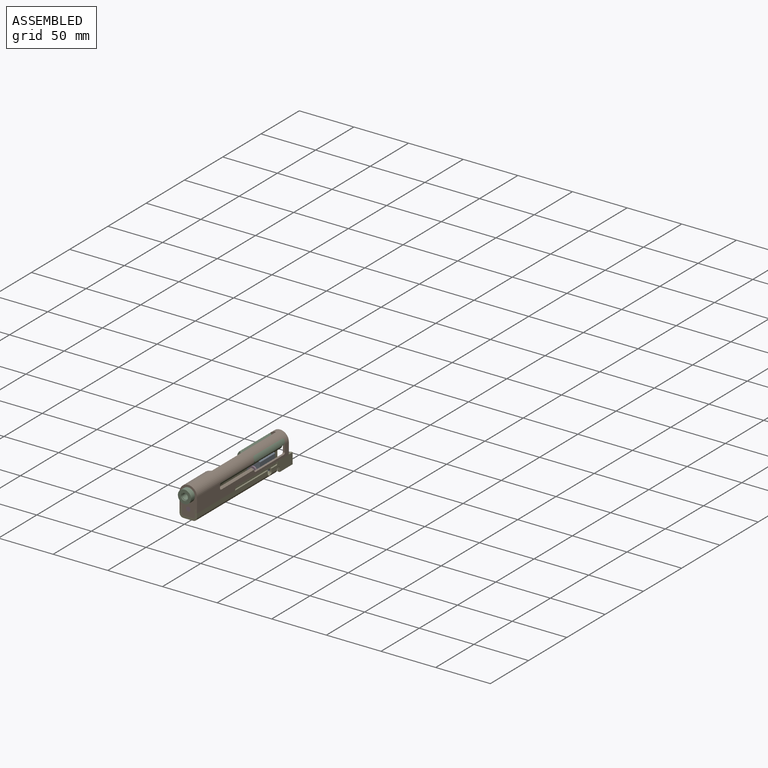
[diagram: assembled view]
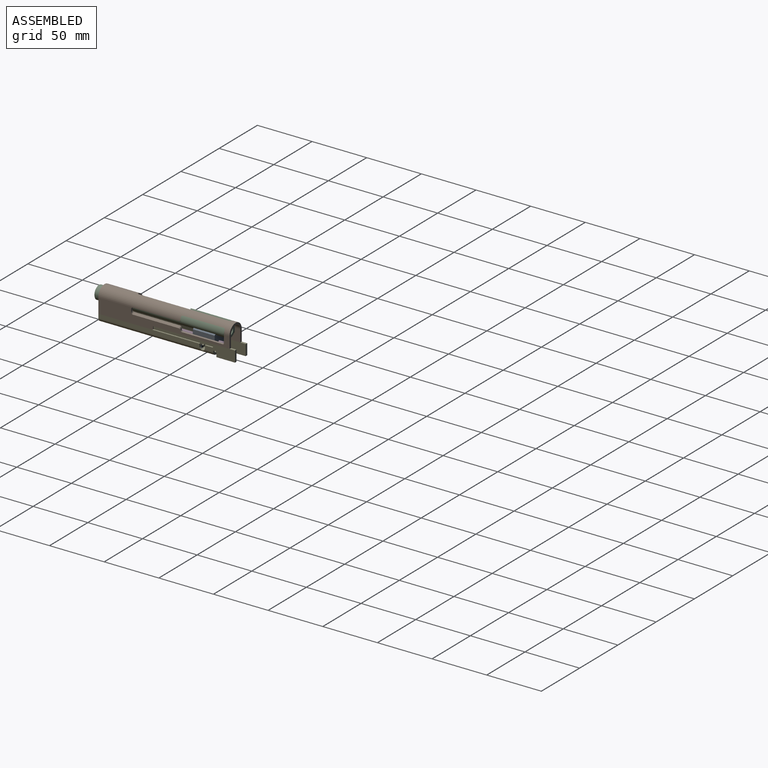
[diagram: assembled view, second angle]
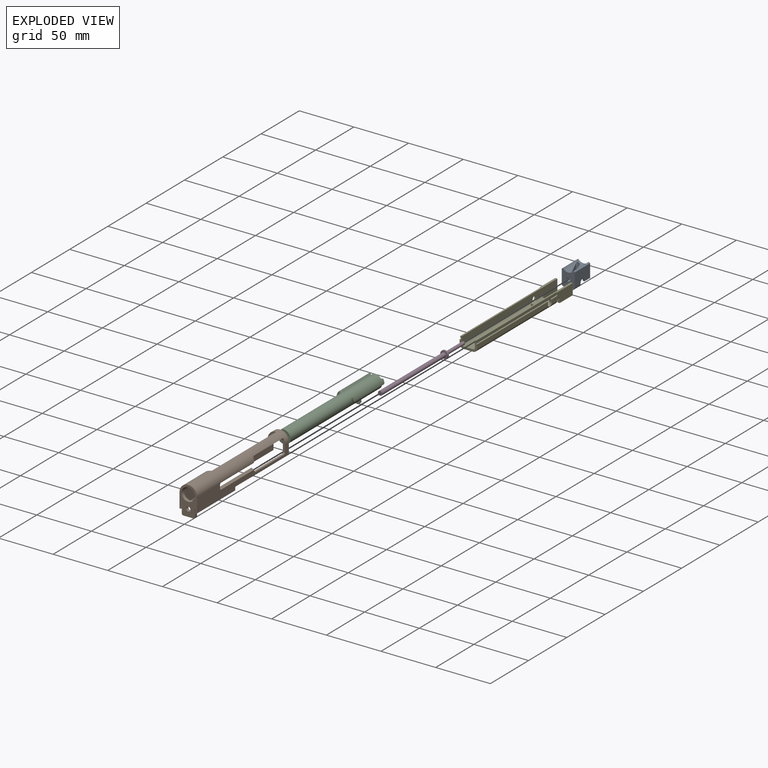
[diagram: exploded view]
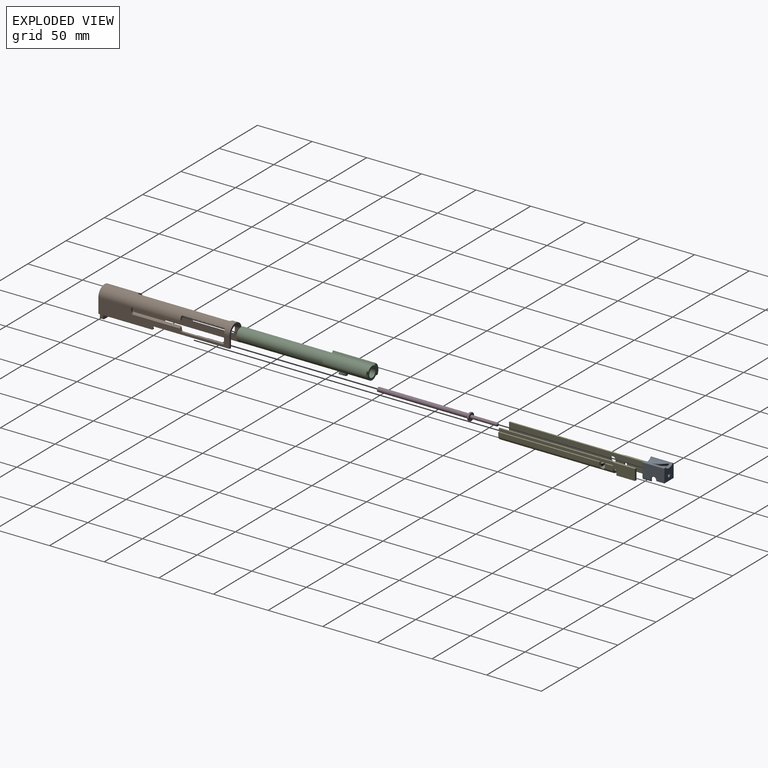
[diagram: exploded view, second angle]
ASSEMBLY  parts=5 mates=7
PART A: 33 faces, bbox 12.2x21.3x15.1 mm
  f0: plane 9x4mm, normal (0,0,-1), area 23.5mm2, adj f17,f19,f29,f30,f31,f32
  f1: plane 12.5x12mm, normal (1,0,0), area 120.7mm2, adj f6,f20,f21,f22,f23,f28,f30,f31
  f2: plane 12.5x12mm, normal (-1,0,0), area 120.7mm2, adj f9,f23,f24,f25,f26,f27,f29,f32
  f3: plane 20x12.64mm, normal (-1,0,0), area 234.2mm2, adj f4,f15,f19,f20,f21,f22,f23,f31
  f4: plane 20x1.15mm, normal (-0.59,0,0.81), area 28.3mm2, adj f3,f5,f15,f19
  f5: cylinder r=6mm len=20mm, axis (0,1,0), area 180.7mm2, adj f4,f8,f11,f12,f15,f16,f17,f19
  f6: cylinder r=7.5mm len=14.15mm, axis (0,1,0), area 49.2mm2, adj f1,f8,f17,f28,f30
  f7: bspline ~6.25x5.78mm, area 1.2mm2, adj f8,f16,f28
  f8: bspline ~18.75x8.87mm, area 25.5mm2, adj f5,f6,f7,f16,f17,f28
  f9: cylinder r=7.5mm len=14.15mm, axis (0,1,0), area 49.1mm2, adj f2,f12,f16,f27,f29
  f10: plane 20x12.64mm, normal (1,0,0), area 234.2mm2, adj f11,f15,f19,f23,f24,f25,f26,f32
  f11: plane 20x1.15mm, normal (0.59,0,0.81), area 28.3mm2, adj f5,f10,f15,f19
  f12: bspline ~18.75x8.48mm, area 25.5mm2, adj f5,f9,f13,f16,f17,f29
  f13: bspline ~6.25x5.24mm, area 0.8mm2, adj f12,f17,f29
  f14: cylinder r=1.5mm len=3mm, axis (0,-1,0), area 23.6mm2, adj f15,f16
  f15: plane 12.97x12mm, normal (0,1,0), area 130.8mm2, adj f3,f4,f5,f10,f11,f14,f23
  f16: plane 12x7.9mm, normal (0,-1,0), area 53.7mm2, adj f5,f7,f8,f9,f12,f14,f23,f27
  f17: plane 14.01x7.91mm, normal (0,1,0), area 65.7mm2, adj f0,f5,f6,f8,f12,f13,f18,f29
  f18: cylinder r=1.5mm len=3mm, axis (0,1,0), area 23.6mm2, adj f17,f19
  f19: plane 14.97x12mm, normal (0,-1,0), area 153.9mm2, adj f0,f3,f4,f5,f10,f11,f18,f31
  f20: plane 2.52x1.5mm, normal (0,1,-0.01), area 3.3mm2, adj f1,f3,f21,f31
  f21: cylinder r=2.5mm len=5mm, axis (-1,0,0), area 11.8mm2, adj f1,f3,f20,f22
  f22: plane 1.5x0.5mm, normal (0,-1,0), area 0.8mm2, adj f1,f3,f21,f23
  f23: plane 12x7.5mm, normal (0,0,-1), area 46mm2, adj f1,f2,f3,f10,f15,f16,f22,f26
  f24: plane 2.52x1.5mm, normal (0,1,-0.01), area 3.3mm2, adj f2,f10,f25,f32
  f25: cylinder r=2.5mm len=5mm, axis (-1,0,0), area 11.8mm2, adj f2,f10,f24,f26
  f26: plane 1.5x0.5mm, normal (0,-1,0), area 0.8mm2, adj f2,f10,f23,f25
  f27: cylinder r=1.5mm len=10.5mm, axis (0,0,-1), area 23.7mm2, adj f2,f9,f16,f23
  f28: cylinder r=1.5mm len=10.5mm, axis (0,0,1), area 22.8mm2, adj f1,f6,f7,f8,f16,f23
  f29: cylinder r=1.5mm len=12.5mm, axis (0,0,1), area 27.5mm2, adj f0,f2,f9,f12,f13,f17
  f30: cylinder r=1.5mm len=12.5mm, axis (0,0,-1), area 28.4mm2, adj f0,f1,f6,f17
  f31: cylinder r=1.5mm len=7.49mm, axis (0,1,0), area 17.6mm2, adj f0,f1,f3,f19,f20
  f32: cylinder r=1.5mm len=7.49mm, axis (0,-1,0), area 17.6mm2, adj f0,f2,f10,f19,f24
PART B: 58 faces, bbox 18.2x120.5x27 mm
  f0: plane 49.25x1.33mm, normal (0,0,-1), area 65.7mm2, adj f1,f6,f44,f56
  f1: plane 120.46x13.96mm, normal (1,0,0), area 817.3mm2, adj f0,f6,f7,f8,f11,f17,f21,f22
  f2: plane 120.46x13.96mm, normal (-1,0,0), area 1178.1mm2, adj f3,f6,f7,f11,f15,f16,f20,f23
  f3: plane 49.25x1.33mm, normal (0,0,-1), area 65.7mm2, adj f2,f6,f51,f57
  f4: plane 117.46x10.96mm, normal (-1,0,0), area 701.3mm2, adj f7,f8,f10,f17,f18,f21,f22,f28
  f5: plane 117.46x10.96mm, normal (1,0,0), area 1054.8mm2, adj f7,f10,f15,f16,f20,f23,f28,f32
  f6: plane 26.5x16mm, normal (0,-1,0), area 243.9mm2, adj f0,f1,f2,f3,f10,f11,f24,f25
  f7: plane 18.5x16mm, normal (0,1,0), area 86mm2, adj f1,f2,f4,f5,f10,f11,f47,f48
  f8: plane 2.46x2mm, normal (0,1,0), area 3.5mm2, adj f1,f4,f38,f40
  f9: plane 6.36x6.36mm, normal (0,1,0), area 15.9mm2, adj f10,f11,f39,f41
  f10: cylinder r=6mm len=120mm, axis (0,-1,0), area 1368.5mm2, adj f4,f5,f6,f7,f9,f12,f13,f14
  f11: cylinder r=8mm len=120mm, axis (0,-1,0), area 1751.3mm2, adj f1,f2,f6,f7,f9,f12,f13,f14
  f12: plane 42x2mm, normal (0,0,-1), area 84mm2, adj f10,f11,f40,f42
  f13: plane 82x2mm, normal (-1,0,0), area 164mm2, adj f10,f11,f35,f41
  f14: plane 2.28x1.91mm, normal (0,1,0), area 2.7mm2, adj f10,f11,f33,f42
  f15: plane 42x2mm, normal (0,0,1), area 84mm2, adj f2,f5,f39,f43
  f16: plane 2.46x2mm, normal (0,1,0), area 3.5mm2, adj f2,f5,f32,f43
  f17: plane 42.01x2mm, normal (0.59,0,0.81), area 103.8mm2, adj f1,f4,f38,f52,f53
  f18: plane 0.82x0.6mm, normal (0,1,0), area 0.2mm2, adj f4,f31,f53
  f19: plane 37x1.62mm, normal (0.59,0,-0.81), area 74mm2, adj f10,f11,f33,f36
  f20: plane 37x2mm, normal (-0.59,0,0.81), area 91.5mm2, adj f2,f5,f32,f37
  f21: plane 37x2mm, normal (0,0,1), area 74mm2, adj f1,f4,f31,f34
  f22: plane 10.22x2.42mm, normal (0,-1,0), area 19.4mm2, adj f1,f4,f10,f11,f34,f36
  f23: plane 11.82x6.5mm, normal (0,-1,0), area 25.4mm2, adj f2,f5,f10,f11,f35,f37
  f24: plane 6.5x3mm, normal (-1,0,0), area 19.5mm2, adj f6,f28,f29,f48
  f25: plane 6.5x3mm, normal (1,0,0), area 19.5mm2, adj f6,f28,f30,f47
  f26: plane 9x3mm, normal (0,0,-1), area 27mm2, adj f6,f28,f29,f30
  f27: cylinder r=2mm len=4mm, axis (0,-1,0), area 37.7mm2, adj f6,f28
  f28: plane 18.5x12mm, normal (0,1,0), area 151.9mm2, adj f4,f5,f10,f24,f25,f26,f27,f29
  f29: cylinder r=1.5mm len=3mm, axis (0,-1,0), area 7.1mm2, adj f6,f24,f26,f28
  f30: cylinder r=1.5mm len=3mm, axis (0,1,0), area 7.1mm2, adj f6,f25,f26,f28
  f31: cylinder r=1.5mm len=2mm, axis (-1,0,0), area 4.5mm2, adj f1,f4,f18,f21,f52
  f32: cylinder r=1.5mm len=3.76mm, axis (-0.81,0,-0.59), area 5.8mm2, adj f2,f5,f16,f20
  f33: cylinder r=1.5mm len=2.65mm, axis (0.81,0,0.59), area 4.8mm2, adj f10,f11,f14,f19
  f34: cylinder r=1.5mm len=2mm, axis (1,0,0), area 4.7mm2, adj f1,f4,f21,f22
  f35: cylinder r=1.5mm len=2.19mm, axis (0,0,1), area 4.8mm2, adj f10,f11,f13,f23
  f36: cylinder r=1.5mm len=2.65mm, axis (-0.81,0,-0.59), area 4.8mm2, adj f10,f11,f19,f22
  f37: cylinder r=1.5mm len=3.76mm, axis (0.81,0,0.59), area 5.8mm2, adj f2,f5,f20,f23
  f38: cylinder r=1.5mm len=3.76mm, axis (-0.81,0,0.59), area 5.8mm2, adj f1,f4,f8,f17
  f39: cylinder r=1.5mm len=2.19mm, axis (-1,0,0), area 4.8mm2, adj f9,f10,f11,f15
  f40: cylinder r=1.5mm len=2mm, axis (1,0,0), area 4.7mm2, adj f1,f4,f8,f12
  f41: cylinder r=1.5mm len=2.19mm, axis (0,0,-1), area 4.8mm2, adj f9,f10,f11,f13
  f42: cylinder r=1.5mm len=2.19mm, axis (-1,0,0), area 4.8mm2, adj f10,f11,f12,f14
  f43: cylinder r=1.5mm len=2mm, axis (1,0,0), area 4.7mm2, adj f2,f5,f15,f16
  f44: plane 50x1.5mm, normal (-1,0,0), area 74.8mm2, adj f0,f6,f45,f56
  f45: plane 49.25x0.67mm, normal (0,0,1), area 32.8mm2, adj f6,f44,f46,f56
  f46: plane 50x2.25mm, normal (-1,0,0), area 75.1mm2, adj f6,f45,f47,f55,f56
  f47: plane 120x2mm, normal (0,0,-1), area 206.7mm2, adj f1,f4,f6,f7,f25,f46,f55
  f48: plane 120x2mm, normal (0,0,-1), area 206.7mm2, adj f2,f5,f6,f7,f24,f49,f54
  f49: plane 50x2.25mm, normal (1,0,0), area 75.1mm2, adj f6,f48,f50,f54,f57
  f50: plane 49.25x0.67mm, normal (0,0,1), area 32.8mm2, adj f6,f49,f51,f57
  f51: plane 50x1.5mm, normal (1,0,0), area 74.8mm2, adj f3,f6,f50,f57
  f52: bspline ~2.06x1.64mm, area 1.5mm2, adj f1,f17,f31,f53
  f53: cylinder r=1.5mm len=2.59mm, axis (0.81,0,-0.59), area 3.7mm2, adj f4,f17,f18,f52
  f54: plane 2.25x0.67mm, normal (0,1,0), area 1.5mm2, adj f2,f48,f49,f57
  f55: plane 2.25x0.67mm, normal (0,1,0), area 1.5mm2, adj f1,f46,f47,f56
  f56: cylinder r=0.75mm len=1.5mm, axis (-1,0,0), area 2.4mm2, adj f0,f1,f44,f45,f46,f55
  f57: cylinder r=0.75mm len=1.5mm, axis (-1,0,0), area 2.4mm2, adj f2,f3,f49,f50,f51,f54
PART C: 31 faces, bbox 16x120x14.5 mm
  f0: plane 15.86x12mm, normal (0,1,0), area 82.1mm2, adj f1,f9,f11,f16,f23,f24,f27,f28
  f1: cylinder r=6mm len=120mm, axis (0,1,0), area 3984.8mm2, adj f0,f2,f10,f12,f13,f14,f15,f17
  f2: plane 12x12mm, normal (0,-1,0), area 81.1mm2, adj f1,f3
  f3: cylinder r=3.19mm len=6.38mm, axis (0,1,0), area 20mm2, adj f2,f4
  f4: plane 6.38x6.38mm, normal (0,-1,0), area 7.3mm2, adj f3,f5
  f5: cylinder r=2.8mm len=93.48mm, axis (0,1,0), area 1644.6mm2, adj f4,f6
  f6: plane 6.38x6.38mm, normal (0,1,0), area 7.3mm2, adj f5,f7
  f7: cylinder r=3.19mm len=6.38mm, axis (0,1,0), area 92.8mm2, adj f6,f8
  f8: cone r=3.98mm half-angle=35deg, axis (0,1,0), area 30.8mm2, adj f7,f9
  f9: cylinder r=3.98mm len=19.77mm, axis (0,1,0), area 493.8mm2, adj f0,f8
  f10: plane 37x1.62mm, normal (0.59,0,-0.81), area 74mm2, adj f1,f11,f27,f29
  f11: cylinder r=8mm len=40mm, axis (0,1,0), area 498.1mm2, adj f0,f10,f12,f13,f27,f28,f29,f30
  f12: plane 37x1.62mm, normal (0.81,0,0.59), area 74mm2, adj f1,f11,f28,f30
  f13: plane 8.88x3.37mm, normal (0,-1,0), area 15.9mm2, adj f1,f11,f29,f30
  f14: plane 37x2mm, normal (0,0,-1), area 74mm2, adj f1,f16,f24,f26
  f15: plane 37x1.62mm, normal (-0.59,0,0.81), area 74mm2, adj f1,f16,f23,f25
  f16: cylinder r=8mm len=40mm, axis (0,1,0), area 196.5mm2, adj f0,f14,f15,f17,f23,f24,f25,f26
  f17: plane 2.28x1.91mm, normal (0,-1,0), area 2.7mm2, adj f1,f16,f25,f26
  f18: bspline ~6.25x3.53mm, area 11.2mm2, adj f1,f20,f21,f22
  f19: bspline ~5x2.8mm, area 11.2mm2, adj f1,f20,f21,f22
  f20: plane 3.29x2.5mm, normal (0,1,0), area 6mm2, adj f1,f18,f19,f22
  f21: plane 3.61x3.19mm, normal (0,-1,0), area 6mm2, adj f1,f18,f19,f22
  f22: bspline ~6.25x5.64mm, area 15.1mm2, adj f18,f19,f20,f21
  f23: cylinder r=1.5mm len=2.65mm, axis (-0.81,0,-0.59), area 4.8mm2, adj f0,f1,f15,f16
  f24: cylinder r=1.5mm len=2.19mm, axis (1,0,0), area 4.8mm2, adj f0,f1,f14,f16
  f25: cylinder r=1.5mm len=2.65mm, axis (-0.81,0,-0.59), area 4.8mm2, adj f1,f15,f16,f17
  f26: cylinder r=1.5mm len=2.19mm, axis (1,0,0), area 4.8mm2, adj f1,f14,f16,f17
  f27: cylinder r=1.5mm len=2.65mm, axis (0.81,0,0.59), area 4.8mm2, adj f0,f1,f10,f11
  f28: cylinder r=1.5mm len=2.65mm, axis (-0.59,0,0.81), area 4.8mm2, adj f0,f1,f11,f12
  f29: cylinder r=1.5mm len=2.65mm, axis (0.81,0,0.59), area 4.8mm2, adj f1,f10,f11,f13
  f30: cylinder r=1.5mm len=2.65mm, axis (-0.59,0,0.81), area 4.8mm2, adj f1,f11,f12,f13
PART D: 7 faces, bbox 7x110x7 mm
  f0: cylinder r=2mm len=83.5mm, axis (0,1,0), area 1049.3mm2, adj f1,f4
  f1: plane 4x4mm, normal (0,-1,0), area 12.6mm2, adj f0
  f2: cylinder r=3.5mm len=7mm, axis (0,-1,0), area 33mm2, adj f3,f4
  f3: plane 7x7mm, normal (0,1,0), area 31.4mm2, adj f2,f5
  f4: plane 7x7mm, normal (0,-1,0), area 25.9mm2, adj f0,f2
  f5: cylinder r=1.5mm len=23.5mm, axis (0,-1,0), area 221.5mm2, adj f3,f6
  f6: sphere r=1.5mm, area 14.1mm2, adj f5
PART E: 64 faces, bbox 16x125x10 mm
  f0: plane 89x9mm, normal (0,0,1), area 430.4mm2, adj f4,f24,f26,f31,f41,f42,f56,f57
  f1: plane 105x9mm, normal (0,0,-1), area 586.9mm2, adj f3,f24,f27,f28,f56,f57,f58,f59
  f2: plane 27.71x10mm, normal (1,0,0), area 212.4mm2, adj f10,f20,f28,f38,f39,f44,f46,f47
  f3: plane 16x3.5mm, normal (0,1,0), area 33.7mm2, adj f1,f5,f9,f25,f27,f28,f52,f53
  f4: cylinder r=1.5mm len=95mm, axis (0,1,0), area 220.7mm2, adj f0,f9,f11,f24,f32,f38
  f5: cylinder r=1.5mm len=10mm, axis (0,1,0), area 20.4mm2, adj f3,f9,f12,f35
  f6: plane 92.5x1.33mm, normal (0,0,1), area 123.3mm2, adj f19,f21,f24,f37
  f7: plane 92.5x1.33mm, normal (0,0,1), area 123.3mm2, adj f8,f16,f24,f36
  f8: plane 92.71x3.5mm, normal (-1,0,0), area 323.8mm2, adj f7,f24,f27,f35,f36
  f9: plane 14x9mm, normal (0,0,1), area 113.5mm2, adj f3,f4,f5,f25,f26,f29,f40,f43
  f10: plane 125x2mm, normal (0,0,1), area 180mm2, adj f2,f11,f23,f24,f44,f47
  f11: plane 125x10mm, normal (-1,0,0), area 853.8mm2, adj f4,f10,f24,f25,f38,f46,f47,f48
  f12: plane 125x10mm, normal (1,0,0), area 853.8mm2, adj f5,f13,f24,f26,f35,f49,f50,f51
  f13: plane 125x2mm, normal (0,0,1), area 180mm2, adj f12,f14,f18,f24,f45,f51
  f14: plane 105x2.25mm, normal (-1,0,0), area 157.6mm2, adj f13,f15,f24,f45,f55
  f15: plane 104.25x0.67mm, normal (0,0,-1), area 69.5mm2, adj f14,f16,f24,f55
  f16: plane 105x4mm, normal (-1,0,0), area 159.9mm2, adj f7,f15,f17,f24,f34,f35,f36,f55
  f17: plane 6.75x1.33mm, normal (0,0,1), area 9mm2, adj f16,f18,f34,f55
  f18: plane 27.71x10mm, normal (-1,0,0), area 212.4mm2, adj f13,f17,f27,f34,f35,f45,f49,f50
  f19: plane 92.71x3.5mm, normal (1,0,0), area 323.8mm2, adj f6,f24,f28,f37,f38
  f20: plane 6.75x1.33mm, normal (0,0,1), area 9mm2, adj f2,f21,f39,f54
  f21: plane 105x4mm, normal (1,0,0), area 159.9mm2, adj f6,f20,f22,f24,f37,f38,f39,f54
  f22: plane 104.25x0.67mm, normal (0,0,-1), area 69.5mm2, adj f21,f23,f24,f54
  f23: plane 105x2.25mm, normal (1,0,0), area 157.6mm2, adj f10,f22,f24,f44,f54
  f24: plane 16x10mm, normal (0,-1,0), area 53.7mm2, adj f0,f1,f4,f6,f7,f8,f10,f11
  f25: cylinder r=1.5mm len=10mm, axis (0,1,0), area 20.4mm2, adj f3,f9,f11,f38
  f26: cylinder r=1.5mm len=95mm, axis (0,1,0), area 220.7mm2, adj f0,f9,f12,f24,f30,f35
  f27: cylinder r=3.5mm len=105mm, axis (0,-1,0), area 572.2mm2, adj f1,f3,f8,f18,f24,f35
  f28: cylinder r=3.5mm len=105mm, axis (0,-1,0), area 572.2mm2, adj f1,f2,f3,f19,f24,f38
  f29: plane 6x2mm, normal (0,1,0), area 12mm2, adj f9,f33,f40,f43
  f30: plane 2x2mm, normal (-1,0,0), area 4mm2, adj f26,f33,f40,f41
  f31: plane 6x2mm, normal (0,-1,0), area 12mm2, adj f0,f33,f41,f42
  f32: plane 2x2mm, normal (1,0,0), area 4mm2, adj f4,f33,f42,f43
  f33: plane 9x5mm, normal (0,0,1), area 43.1mm2, adj f29,f30,f31,f32,f40,f41,f42,f43
  f34: plane 2.5x1.33mm, normal (0,-1,0), area 3.3mm2, adj f16,f17,f18,f35
  f35: cylinder r=2.5mm len=5mm, axis (-1,0,0), area 23.2mm2, adj f5,f8,f12,f16,f18,f26,f27,f34
  f36: plane 2.5x1.33mm, normal (0,1,0), area 3.3mm2, adj f7,f8,f16,f35
  f37: plane 2.5x1.33mm, normal (0,1,0), area 3.3mm2, adj f6,f19,f21,f38
  f38: cylinder r=2.5mm len=5mm, axis (1,0,0), area 23.2mm2, adj f2,f4,f11,f19,f21,f25,f28,f37
  f39: plane 2.5x1.33mm, normal (0,-1,0), area 3.3mm2, adj f2,f20,f21,f38
  f40: cylinder r=1.5mm len=2mm, axis (0,0,1), area 4.7mm2, adj f9,f29,f30,f33
  f41: cylinder r=1.5mm len=2mm, axis (0,0,-1), area 4.7mm2, adj f0,f30,f31,f33
  f42: cylinder r=1.5mm len=2mm, axis (0,0,-1), area 4.7mm2, adj f0,f31,f32,f33
  f43: cylinder r=1.5mm len=2mm, axis (0,0,1), area 4.7mm2, adj f9,f29,f32,f33
  f44: plane 2.25x0.67mm, normal (0,-1,0), area 1.5mm2, adj f2,f10,f23,f54
  f45: plane 2.25x0.67mm, normal (0,-1,0), area 1.5mm2, adj f13,f14,f18,f55
  f46: plane 17x2mm, normal (0,0,-1), area 34mm2, adj f2,f11,f47,f48
  f47: plane 10x2mm, normal (0,1,0), area 20mm2, adj f2,f10,f11,f46
  f48: plane 3.5x2mm, normal (0,-1,0), area 7mm2, adj f2,f11,f46,f53
  f49: plane 3.5x2mm, normal (0,-1,0), area 7mm2, adj f12,f18,f50,f52
  f50: plane 17x2mm, normal (0,0,-1), area 34mm2, adj f12,f18,f49,f51
  f51: plane 10x2mm, normal (0,1,0), area 20mm2, adj f12,f13,f18,f50
  f52: cylinder r=1.5mm len=3mm, axis (1,0,0), area 9.4mm2, adj f3,f12,f18,f49
  f53: cylinder r=1.5mm len=3mm, axis (1,0,0), area 9.4mm2, adj f2,f3,f11,f48
  f54: cylinder r=0.75mm len=1.5mm, axis (-1,0,0), area 2.4mm2, adj f2,f20,f21,f22,f23,f44
  f55: cylinder r=0.75mm len=1.5mm, axis (1,0,0), area 2.4mm2, adj f14,f15,f16,f17,f18,f45
  f56: plane 3x2mm, normal (0,-1,0), area 6mm2, adj f0,f1,f60,f63
  f57: plane 57x2mm, normal (1,0,0), area 114mm2, adj f0,f1,f60,f61
  f58: plane 3x2mm, normal (0,1,0), area 6mm2, adj f0,f1,f61,f62
  f59: plane 57x2mm, normal (-1,0,0), area 114mm2, adj f0,f1,f62,f63
  f60: cylinder r=1.5mm len=2mm, axis (0,0,1), area 4.7mm2, adj f0,f1,f56,f57
  f61: cylinder r=1.5mm len=2mm, axis (0,0,-1), area 4.7mm2, adj f0,f1,f57,f58
  f62: cylinder r=1.5mm len=2mm, axis (0,0,1), area 4.7mm2, adj f0,f1,f58,f59
  f63: cylinder r=1.5mm len=2mm, axis (0,0,-1), area 4.7mm2, adj f0,f1,f56,f59
PLACE A t=(-0.02,7.7,11.33)mm fixed
PLACE B t=(-0.02,-94.8,11.33)mm
PLACE C rot(axis=(-0.36,0.93,0.03),0deg) t=(-0.02,20.2,11.33)mm
PLACE D t=(-0.02,-11.3,-0.67)mm
PLACE E t=(-0.02,-94.8,-0.67)mm
MATE slider E.f24 <-> B.f6  axis (0,-1,0) through (-6.68,-94.8,-0.67)mm
MATE slider D.f2 <-> A.f14  axis (0,1,0) through (-0.02,-9.8,-0.67)mm
MATE cylindrical C.f1 <-> B.f10  axis (0,-1,0) through (-0.02,-99.8,11.33)mm
MATE slider D.f0 <-> B.f27  axis (0,-1,0) through (-0.02,-94.8,-0.67)mm
MATE slider E.f31 <-> A.f17  axis (0,-1,0) through (-0.02,-7.3,-7.17)mm
MATE slider B.f27 <-> D.f0  axis (0,-1,0) through (-0.02,-94.8,-0.67)mm
MATE cylindrical A.f5 <-> C.f1  axis (0,1,0) through (-0.02,-7.3,11.33)mm
